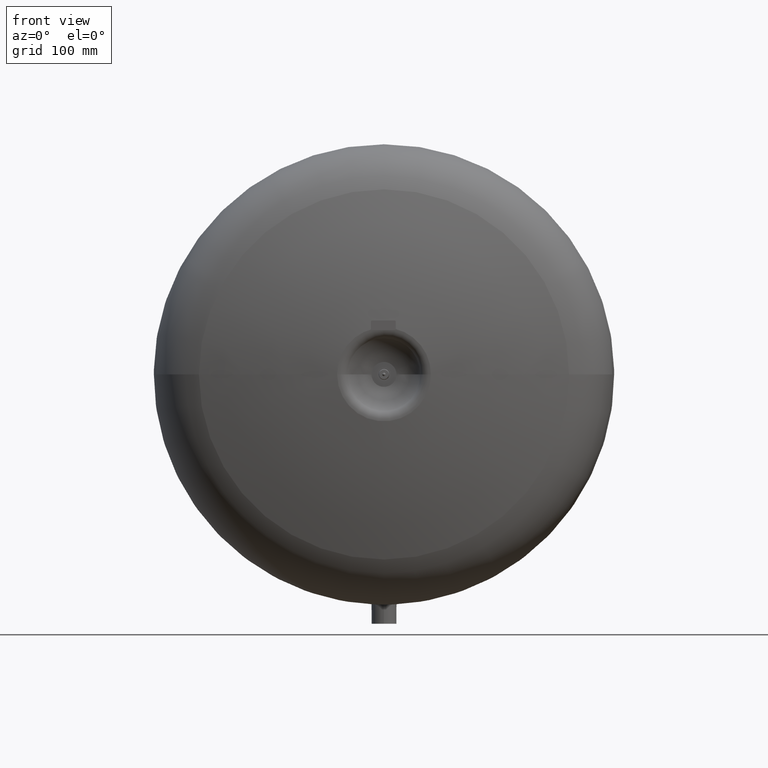
[diagram: clean part render]
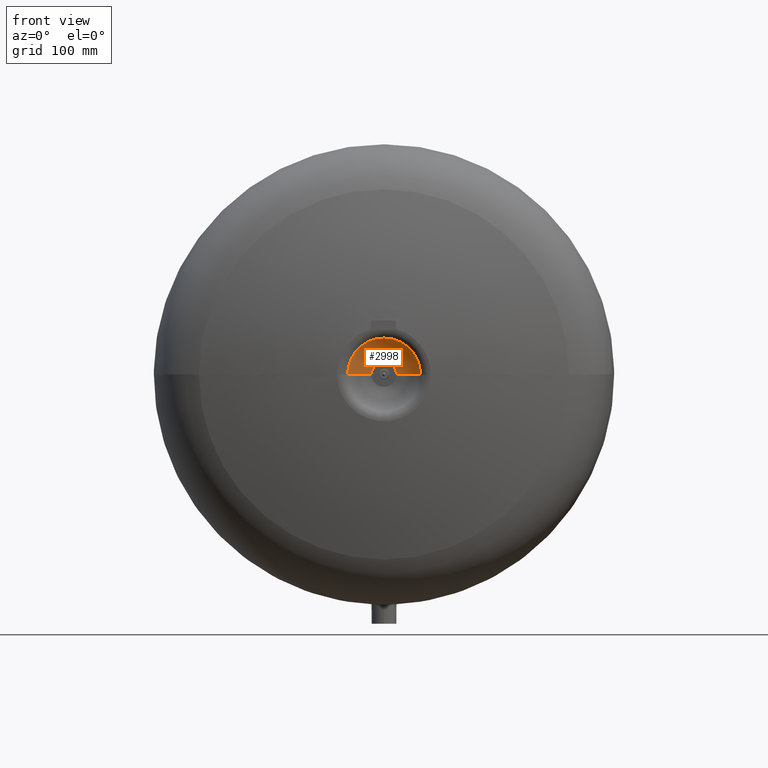
[diagram: same view with one face highlighted and labeled with its STEP entity id]
A machine part, front view. The second image highlights one B-rep face of the part: STEP entity #2998.
In plain terms, the highlighted face is a freeform B-spline surface patch.
Its self-contained STEP definition (entity closure, byte-faithful):
#2907=CARTESIAN_POINT('',(-1.953993E-014,-175.78177250532855,260.00000000000006));
#2908=CARTESIAN_POINT('',(-23.932407229126234,-164.68312428261814,260.00000000000006));
#2909=CARTESIAN_POINT('',(-38.000000000000057,-186.99999999999991,260.00000000000006));
#2910=CARTESIAN_POINT('',(-1.953993E-014,-175.78177250532855,260.00000000000006));
#2911=CARTESIAN_POINT('',(-23.93240722912623,-164.68312428261814,236.06759277087383));
#2912=CARTESIAN_POINT('',(-38.00000000000005,-186.99999999999994,222.0));
#2913=CARTESIAN_POINT('',(-1.636964E-014,-175.78177250532855,260.00000000000006));
#2914=CARTESIAN_POINT('',(-1.433092E-014,-164.68312428261814,236.06759277087383));
#2915=CARTESIAN_POINT('',(-1.843033E-014,-186.99999999999991,222.00000000000003));
#2916=CARTESIAN_POINT('',(-1.319935E-014,-175.78177250532855,260.00000000000006));
#2917=CARTESIAN_POINT('',(23.932407229126202,-164.68312428261814,236.06759277087383));
#2918=CARTESIAN_POINT('',(38.000000000000007,-186.99999999999994,222.0));
#2919=CARTESIAN_POINT('',(-1.319935E-014,-175.78177250532855,260.00000000000006));
#2920=CARTESIAN_POINT('',(23.932407229126206,-164.68312428261814,260.00000000000006));
#2921=CARTESIAN_POINT('',(38.000000000000014,-186.99999999999991,260.00000000000006));
#2922=CARTESIAN_POINT('',(-1.319935E-014,-175.78177250532855,260.00000000000006));
#2923=CARTESIAN_POINT('',(23.932407229126202,-164.68312428261814,283.93240722912628));
#2924=CARTESIAN_POINT('',(38.000000000000007,-186.99999999999994,298.00000000000011));
#2925=CARTESIAN_POINT('',(-1.636964E-014,-175.78177250532855,260.00000000000006));
#2926=CARTESIAN_POINT('',(-1.433092E-014,-164.68312428261814,283.93240722912628));
#2927=CARTESIAN_POINT('',(-1.843033E-014,-186.99999999999991,298.00000000000011));
#2928=CARTESIAN_POINT('',(-1.953993E-014,-175.78177250532855,260.00000000000006));
#2929=CARTESIAN_POINT('',(-23.93240722912623,-164.68312428261814,283.93240722912628));
#2930=CARTESIAN_POINT('',(-38.00000000000005,-186.99999999999994,298.00000000000011));
#2931=CARTESIAN_POINT('',(-1.953993E-014,-175.78177250532855,260.00000000000006));
#2932=CARTESIAN_POINT('',(-23.932407229126234,-164.68312428261814,260.00000000000006));
#2933=CARTESIAN_POINT('',(-38.000000000000057,-186.99999999999991,260.00000000000006));
#2941=(BOUNDED_SURFACE()B_SPLINE_SURFACE(2,2,((#2907,#2910,#2913,#2916,#2919,#2922,#2925,#2928,#2931),(#2908,#2911,#2914,#2917,#2920,#2923,#2926,#2929,#2932),(#2909,#2912,#2915,#2918,#2921,#2924,#2927,#2930,#2933)),.UNSPECIFIED.,.F.,.T.,.U.)B_SPLINE_SURFACE_WITH_KNOTS((3,3),(3,2,2,2,3),(-2.005025544639729,-0.562442074459442),(0.0,1.570796326794897,3.141592653589793,4.71238898038469,6.283185307179586),.UNSPECIFIED.)GEOMETRIC_REPRESENTATION_ITEM()RATIONAL_B_SPLINE_SURFACE(((1.0,0.707106781186548,1.0,0.707106781186548,1.0,0.707106781186548,1.0,0.707106781186548,1.0),(0.750953351835331,0.53100420743753,0.750953351835331,0.53100420743753,0.750953351835331,0.53100420743753,0.750953351835331,0.53100420743753,0.750953351835331),(1.0,0.707106781186548,1.0,0.707106781186548,1.0,0.707106781186548,1.0,0.707106781186548,1.0)))REPRESENTATION_ITEM('')SURFACE());
#2942=CARTESIAN_POINT('',(38.000000000000014,-186.99999999999991,260.00000000000006));
#2943=VERTEX_POINT('',#2942);
#2944=CARTESIAN_POINT('',(13.000000000000023,-172.99999999999991,260.00000000000006));
#2945=VERTEX_POINT('',#2944);
#2946=CARTESIAN_POINT('',(12.621338310274956,-202.99761016022327,260.00000000000006));
#2947=DIRECTION('',(0.0,0.0,1.0));
#2948=DIRECTION('',(1.0,0.0,0.0));
#2949=AXIS2_PLACEMENT_3D('',#2946,#2947,#2948);
#2950=CIRCLE('',#2949,30.0);
#2951=EDGE_CURVE('',#2943,#2945,#2950,.T.);
#2952=ORIENTED_EDGE('',*,*,#2951,.F.);
#2953=CARTESIAN_POINT('',(-1.610357E-014,-186.99999999999991,298.00000000000011));
#2954=VERTEX_POINT('',#2953);
#2955=CARTESIAN_POINT('',(-1.843033E-014,-186.99999999999991,260.00000000000006));
#2956=DIRECTION('',(0.0,-1.0,0.0));
#2957=DIRECTION('',(0.0,0.0,1.0));
#2958=AXIS2_PLACEMENT_3D('',#2955,#2956,#2957);
#2959=CIRCLE('',#2958,38.000000000000036);
#2960=EDGE_CURVE('',#2943,#2954,#2959,.T.);
#2961=ORIENTED_EDGE('',*,*,#2960,.T.);
#2962=CARTESIAN_POINT('',(-38.000000000000057,-186.99999999999991,260.00000000000006));
#2963=VERTEX_POINT('',#2962);
#2964=CARTESIAN_POINT('',(-1.843033E-014,-186.99999999999991,260.00000000000006));
#2965=DIRECTION('',(0.0,-1.0,0.0));
#2966=DIRECTION('',(0.0,0.0,1.0));
#2967=AXIS2_PLACEMENT_3D('',#2964,#2965,#2966);
#2968=CIRCLE('',#2967,38.000000000000036);
#2969=EDGE_CURVE('',#2954,#2963,#2968,.T.);
#2970=ORIENTED_EDGE('',*,*,#2969,.T.);
#2971=CARTESIAN_POINT('',(-13.000000000000055,-172.99999999999991,260.00000000000006));
#2972=VERTEX_POINT('',#2971);
#2973=CARTESIAN_POINT('',(-12.621338310274998,-202.99761016022327,260.00000000000006));
#2974=DIRECTION('',(0.0,0.0,-1.0));
#2975=DIRECTION('',(-1.0,0.0,0.0));
#2976=AXIS2_PLACEMENT_3D('',#2973,#2974,#2975);
#2977=CIRCLE('',#2976,30.0);
#2978=EDGE_CURVE('',#2963,#2972,#2977,.T.);
#2979=ORIENTED_EDGE('',*,*,#2978,.T.);
#2980=CARTESIAN_POINT('',(-1.506266E-014,-172.99999999999991,273.00000000000011));
#2981=VERTEX_POINT('',#2980);
#2982=CARTESIAN_POINT('',(-1.585865E-014,-172.99999999999991,260.00000000000006));
#2983=DIRECTION('',(0.0,-1.0,0.0));
#2984=DIRECTION('',(0.0,0.0,1.0));
#2985=AXIS2_PLACEMENT_3D('',#2982,#2983,#2984);
#2986=CIRCLE('',#2985,13.000000000000039);
#2987=EDGE_CURVE('',#2981,#2972,#2986,.T.);
#2988=ORIENTED_EDGE('',*,*,#2987,.F.);
#2989=CARTESIAN_POINT('',(-1.585865E-014,-172.99999999999991,260.00000000000006));
#2990=DIRECTION('',(0.0,-1.0,0.0));
#2991=DIRECTION('',(0.0,0.0,1.0));
#2992=AXIS2_PLACEMENT_3D('',#2989,#2990,#2991);
#2993=CIRCLE('',#2992,13.000000000000039);
#2994=EDGE_CURVE('',#2945,#2981,#2993,.T.);
#2995=ORIENTED_EDGE('',*,*,#2994,.F.);
#2996=EDGE_LOOP('',(#2952,#2961,#2970,#2979,#2988,#2995));
#2997=FACE_OUTER_BOUND('',#2996,.T.);
#2998=ADVANCED_FACE('',(#2997),#2941,.T.);